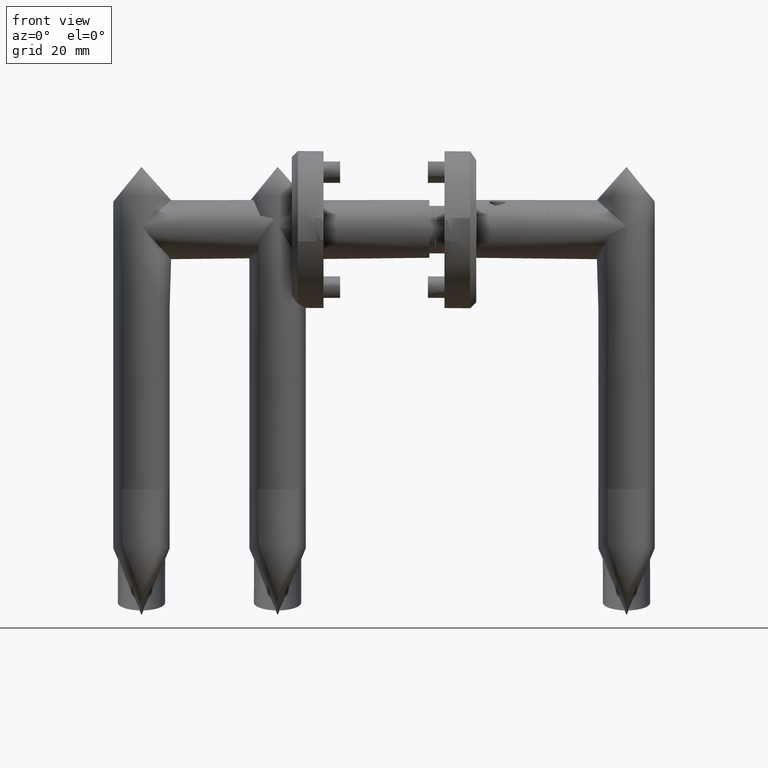
[diagram: clean part render]
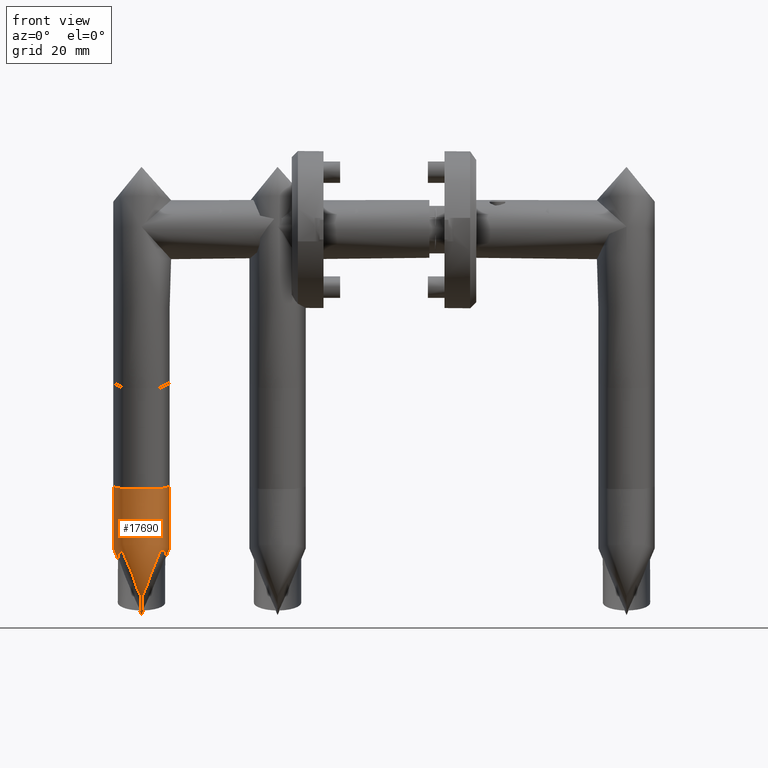
[diagram: same view with one face highlighted and labeled with its STEP entity id]
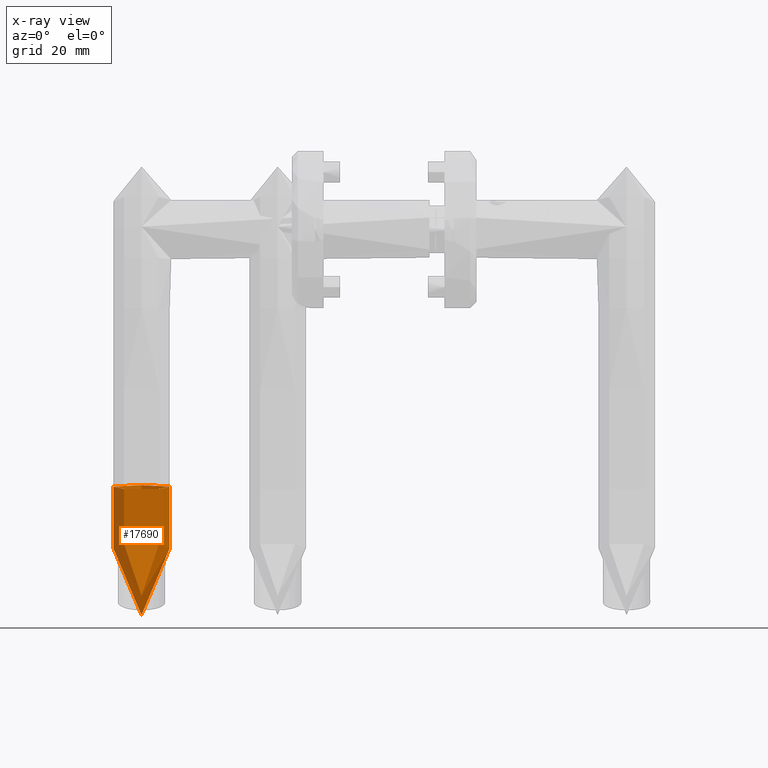
[diagram: x-ray of the same camera — body ghosted, the highlighted face saturated]
A machine part, front view. The second image highlights one B-rep face of the part: STEP entity #17690.
The next image is the same camera in x-ray: the body ghosted, the highlighted face saturated — about 0% of this face is hidden behind the body in this view.
In plain terms, the highlighted toroidal blend (fillet) surface has major radius 100 mm and minor (blend) radius 9.8 mm.
Its self-contained STEP definition (entity closure, byte-faithful):
#49 = CARTESIAN_POINT ( 'NONE',  ( -94.30587042315966100, 15.09717805399581200, 50.20000000000003800 ) ) ;
#73 = CARTESIAN_POINT ( 'NONE',  ( -137.2505436632808700, 9.521688678409246300, 51.48706898686970800 ) ) ;
#154 = DIRECTION ( 'NONE',  ( 1.972152263052526900E-031, 3.889170968374258800E-034, 1.000000000000000000 ) ) ;
#216 = CARTESIAN_POINT ( 'NONE',  ( -136.4760305675287400, 7.293589751568066300, 56.68208467119812600 ) ) ;
#579 = VERTEX_POINT ( 'NONE', #49 ) ;
#930 = CARTESIAN_POINT ( 'NONE',  ( -133.2216185328167300, -2.071634367237822300, 59.67150684859506500 ) ) ;
#1067 = CARTESIAN_POINT ( 'NONE',  ( -133.6314865475514500, -0.8918551739545908000, 59.93598185547986600 ) ) ;
#1210 = CARTESIAN_POINT ( 'NONE',  ( -135.3806859842590300, 4.142081212017075100, 41.26635353884891100 ) ) ;
#1492 = CARTESIAN_POINT ( 'NONE',  ( -136.9855081724475700, 8.759267931215221700, 46.14909681967486000 ) ) ;
#2336 = AXIS2_PLACEMENT_3D ( 'NONE', #16069, #19711, #6951 ) ;
#2344 = AXIS2_PLACEMENT_3D ( 'NONE', #26284, #154, #16360 ) ;
#2496 = FACE_OUTER_BOUND ( 'NONE', #25106, .T. ) ;
#3200 = CARTESIAN_POINT ( 'NONE',  ( -136.7861674528744500, 8.185811057130569800, 55.38497639291452400 ) ) ;
#3340 = CARTESIAN_POINT ( 'NONE',  ( -133.0191027104699800, -2.654593366463261700, 40.91573145400595700 ) ) ;
#3472 = CARTESIAN_POINT ( 'NONE',  ( -133.8412008356639300, -0.2882450497194664100, 59.99983444358028400 ) ) ;
#4188 = CARTESIAN_POINT ( 'NONE',  ( -134.7824555502190300, 2.420630773650543200, 59.75080105497685400 ) ) ;
#4329 = CARTESIAN_POINT ( 'NONE',  ( -137.0299040370925400, 8.886983007033906600, 53.96543911801062900 ) ) ;
#4858 = EDGE_LOOP ( 'NONE', ( #23673 ) ) ;
#4915 = CARTESIAN_POINT ( 'NONE',  ( -136.7860899921550700, 8.185588201121046100, 45.01485869326855700 ) ) ;
#5924 = EDGE_CURVE ( 'NONE', #28705, #28705, #26653, .T. ) ;
#6448 = CARTESIAN_POINT ( 'NONE',  ( -130.9417777463193600, -8.635766100734068500, 52.74827549419139000 ) ) ;
#6583 = CARTESIAN_POINT ( 'NONE',  ( -131.0032562662959200, -8.458712065413957100, 53.36278957010308900 ) ) ;
#6951 = DIRECTION ( 'NONE',  ( 0.07082954865716628600, 0.9974884335354581300, 0.0000000000000000000 ) ) ;
#7307 = CARTESIAN_POINT ( 'NONE',  ( -131.4983316940442300, -7.033029923588770800, 56.18285820964212700 ) ) ;
#7444 = CARTESIAN_POINT ( 'NONE',  ( -131.1649470607422400, -7.993069608801747000, 45.84904688958492600 ) ) ;
#7581 = CARTESIAN_POINT ( 'NONE',  ( -130.9465071588801100, -8.622146003430163600, 47.65979484122671300 ) ) ;
#9554 = CARTESIAN_POINT ( 'NONE',  ( -131.5019567994518800, -7.022594235418352100, 44.22864478948980600 ) ) ;
#9702 = CARTESIAN_POINT ( 'NONE',  ( -133.0199159554198000, -2.652252313485353100, 59.48513295218805300 ) ) ;
#9838 = CARTESIAN_POINT ( 'NONE',  ( -134.8844443954501700, 2.714122961431375100, 59.67333815134161100 ) ) ;
#10537 = CARTESIAN_POINT ( 'NONE',  ( -131.9297535314316600, -5.790781539996562100, 42.81466505464563000 ) ) ;
#10681 = CARTESIAN_POINT ( 'NONE',  ( -135.1870953438657400, 3.585028940994867700, 59.37761911730361700 ) ) ;
#10820 = CARTESIAN_POINT ( 'NONE',  ( -136.0149819239575200, 5.967135855057123600, 42.40479340325518400 ) ) ;
#10961 = CARTESIAN_POINT ( 'NONE',  ( -136.9398229469338700, 8.627843704895989100, 45.85543902642024200 ) ) ;
#11250 = CARTESIAN_POINT ( 'NONE',  ( -134.8882096061357700, 2.724965919176059800, 40.71356107942354900 ) ) ;
#11390 = CARTESIAN_POINT ( 'NONE',  ( -135.6634196130113400, 4.955608736246371200, 41.70836834967475700 ) ) ;
#11722 = CARTESIAN_POINT ( 'NONE',  ( -137.2713942788150500, 9.581667550076804900, 50.84723566667401700 ) ) ;
#12225 = EDGE_CURVE ( 'NONE', #579, #579, #13749, .T. ) ;
#12761 = CARTESIAN_POINT ( 'NONE',  ( -131.6364587602083400, -6.635293846399601800, 43.72960601155012500 ) ) ;
#12907 = CARTESIAN_POINT ( 'NONE',  ( -136.9401360096909200, 8.628744303472771500, 54.54255943944645000 ) ) ;
#13038 = CARTESIAN_POINT ( 'NONE',  ( -134.2653210898901100, 0.9324078507737929600, 60.00016491543603100 ) ) ;
#13749 = CIRCLE ( 'NONE', #2336, 9.800000000000006000 ) ;
#13756 = CARTESIAN_POINT ( 'NONE',  ( -132.4465924532386800, -4.302739830939275500, 41.70588969626112400 ) ) ;
#13894 = CARTESIAN_POINT ( 'NONE',  ( -131.1682889898215200, -7.983446958773057200, 54.53599037197601300 ) ) ;
#14036 = CARTESIAN_POINT ( 'NONE',  ( -137.1067527543847300, 9.108053626402103500, 47.03947301256440000 ) ) ;
#15985 = ORIENTED_EDGE ( 'NONE', *, *, #5924, .T. ) ;
#15987 = CARTESIAN_POINT ( 'NONE',  ( -132.4425550903277400, -4.314356701547044500, 58.70503834560678800 ) ) ;
#16069 = CARTESIAN_POINT ( 'NONE',  ( -94.99999999999988600, 5.321791405348316900, 50.20000000000003800 ) ) ;
#16132 = CARTESIAN_POINT ( 'NONE',  ( -132.0916399017695300, -5.324669796115940400, 42.40934675098853300 ) ) ;
#16270 = CARTESIAN_POINT ( 'NONE',  ( -133.3234007152127300, -1.778654288655589800, 59.74909754602772000 ) ) ;
#16360 = DIRECTION ( 'NONE',  ( 1.000000000000000000, -7.670037326677482100E-065, -1.972152263052526700E-031 ) ) ;
#16990 = CARTESIAN_POINT ( 'NONE',  ( -133.2203663737681200, -2.075238755135472500, 40.72953833911649500 ) ) ;
#17126 = CARTESIAN_POINT ( 'NONE',  ( -135.6637145493262200, 4.956462278983772200, 58.70917250445815900 ) ) ;
#17689 = CARTESIAN_POINT ( 'NONE',  ( -137.2500920840657600, 9.520389651944851700, 48.90508894726351500 ) ) ;
#17690 = ADVANCED_FACE ( 'NONE', ( #2496, #25595 ), #40102, .T. ) ;
#17826 = CARTESIAN_POINT ( 'NONE',  ( -135.0886688341376800, 3.301809027693098000, 40.89851876511694000 ) ) ;
#19214 = CARTESIAN_POINT ( 'NONE',  ( -136.8408554178653800, 8.343137139713922700, 55.10740291444172800 ) ) ;
#19354 = CARTESIAN_POINT ( 'NONE',  ( -132.8217753795686600, -3.222633932605510700, 41.13106377182577200 ) ) ;
#19490 = CARTESIAN_POINT ( 'NONE',  ( -130.9209986572090500, -8.695608978654840700, 47.97016899187877900 ) ) ;
#19711 = DIRECTION ( 'NONE',  ( 0.9974884335354582400, -0.07082954865716700700, 1.848892746611746900E-031 ) ) ;
#20191 = CARTESIAN_POINT ( 'NONE',  ( -133.6347832177671400, -0.8823661205560643400, 40.46226500349676100 ) ) ;
#20326 = CARTESIAN_POINT ( 'NONE',  ( -130.8382691152118300, -8.933867784720362700, 50.83977717308285800 ) ) ;
#20606 = CARTESIAN_POINT ( 'NONE',  ( -136.6112789533505300, 7.682685676180278200, 44.21928112376629400 ) ) ;
#21024 = CARTESIAN_POINT ( 'NONE',  ( -137.1676536069239500, 9.283244061047900800, 47.65011497134393900 ) ) ;
#22429 = CARTESIAN_POINT ( 'NONE',  ( -131.0078186050759800, -8.445574890725437100, 47.04439093759056300 ) ) ;
#22552 = CARTESIAN_POINT ( 'NONE',  ( -132.0934562589776000, -5.319440292532017400, 57.99452834347136600 ) ) ;
#22690 = CARTESIAN_POINT ( 'NONE',  ( -136.1754825068586000, 6.428907837619732400, 57.57444401245621200 ) ) ;
#23413 = CARTESIAN_POINT ( 'NONE',  ( -131.3223608477666700, -7.539761990205667200, 55.38085868616949600 ) ) ;
#23561 = CARTESIAN_POINT ( 'NONE',  ( -137.1883152580383000, 9.342680137011974800, 52.43583001759196800 ) ) ;
#23673 = ORIENTED_EDGE ( 'NONE', *, *, #12225, .F. ) ;
#23697 = CARTESIAN_POINT ( 'NONE',  ( -136.4778495551284200, 7.298822988238149500, 43.72345113579677200 ) ) ;
#23839 = CARTESIAN_POINT ( 'NONE',  ( -135.7535421779313400, 5.214916258106145900, 41.87298791730117400 ) ) ;
#25106 = EDGE_LOOP ( 'NONE', ( #15985 ) ) ;
#25595 = FACE_OUTER_BOUND ( 'NONE', #4858, .T. ) ;
#25636 = CARTESIAN_POINT ( 'NONE',  ( -135.0867769801566600, 3.296358606018746900, 59.48685882853204300 ) ) ;
#25768 = CARTESIAN_POINT ( 'NONE',  ( -136.2534587370211600, 6.653249415385199800, 57.35922320689593300 ) ) ;
#25917 = CARTESIAN_POINT ( 'NONE',  ( -136.0117395213048900, 5.957801691618325200, 57.98329180600230600 ) ) ;
#26284 = CARTESIAN_POINT ( 'NONE',  ( -102.0829548657166700, -94.42705194819750100, 50.19999999999999600 ) ) ;
#26623 = CARTESIAN_POINT ( 'NONE',  ( -132.6271956339884100, -3.782789253097105200, 59.00622119506697100 ) ) ;
#26653 = B_SPLINE_CURVE_WITH_KNOTS ( 'NONE', 3,
 ( #31603, #11722, #73, #23561, #29841, #32214, #4329, #12907, #19214, #3200, #31956, #216, #25768, #22690, #25917, #36287, #17126, #28873, #10681, #25636, #9838, #4188, #35445, #13038, #3472, #1067, #16270, #930, #9702, #38636, #26623, #15987, #22552, #29008, #33061, #7307, #23413, #38375, #13894, #41611, #6583, #6448, #39484, #20326, #26772, #32086, #19490, #7581, #22429, #29706, #7444, #32924, #35301, #9554, #12761, #35161, #10537, #16132, #38507, #13756, #36141, #19354, #3340, #16990, #39346, #20191, #30266, #33194, #33624, #39618, #29989, #11250, #17826, #1210, #30410, #11390, #23839, #10820, #36857, #23697, #20606, #4915, #36435, #10961, #1492, #14036, #21024, #17689, #40062, #27336 ),
 .UNSPECIFIED., .T., .F.,
 ( 4, 2, 2, 1, 2, 2, 2, 2, 2, 2, 2, 2, 2, 2, 2, 2, 2, 2, 2, 2, 2, 2, 2, 2, 2, 2, 2, 2, 2, 2, 2, 1, 2, 2, 2, 2, 2, 2, 2, 2, 2, 2, 2, 2, 2, 4 ),
 ( 0.0000000000000000000, 0.001928646792966233500, 0.002892970189449352800, 0.003857293585932472200, 0.004821616982415590600, 0.005785940378898710900, 0.007714587171864981600, 0.008678910568348107900, 0.009643233964831235100, 0.01157188075779749300, 0.01253620415428063000, 0.01350052755076376600, 0.01542917434373003800, 0.01735782113669630900, 0.01832214453317945700, 0.01928646792966260200, 0.02121511472262889800, 0.02314376151559518700, 0.02507240830856147900, 0.02603673170504462700, 0.02700105510152776800, 0.02892970189449406400, 0.03085834868746035700, 0.03278699548042664900, 0.03375131887690979000, 0.03471564227339292400, 0.03664428906635917900, 0.03760861246284229900, 0.03857293585932541200, 0.04050158265229167300, 0.04146590604877480700, 0.04243022944525794800, 0.04339455284174108300, 0.04435887623822421700, 0.04628752303119045700, 0.04725184642767356300, 0.04821616982415667000, 0.05014481661712285500, 0.05110914001360594000, 0.05207346341008901900, 0.05400211020305517600, 0.05593075699602134000, 0.05689508039250443200, 0.05785940378898751800, 0.05978805058195370300, 0.06171669737491988100 ),
 .UNSPECIFIED. ) ;
#26772 = CARTESIAN_POINT ( 'NONE',  ( -130.8385886507168400, -8.932947522813664800, 49.54547159850696400 ) ) ;
#27336 = CARTESIAN_POINT ( 'NONE',  ( -137.2713942788150800, 9.581667550076808500, 50.20000000000002400 ) ) ;
#28705 = VERTEX_POINT ( 'NONE', #35420 ) ;
#28873 = CARTESIAN_POINT ( 'NONE',  ( -135.4789319493337700, 4.424781471889913200, 59.00965203948810300 ) ) ;
#29008 = CARTESIAN_POINT ( 'NONE',  ( -131.9279714820250100, -5.795912573221516900, 57.58060962158165800 ) ) ;
#29706 = CARTESIAN_POINT ( 'NONE',  ( -131.0437892131588700, -8.341983923573129900, 46.73857495003004200 ) ) ;
#29841 = CARTESIAN_POINT ( 'NONE',  ( -137.1622993623541900, 9.267841594829999300, 52.75036262866006400 ) ) ;
#29989 = CARTESIAN_POINT ( 'NONE',  ( -134.5789010367843700, 1.834848714268657400, 40.52601281831078900 ) ) ;
#30266 = CARTESIAN_POINT ( 'NONE',  ( -133.8434011630975800, -0.2819123442237202500, 40.40019572331691900 ) ) ;
#30410 = CARTESIAN_POINT ( 'NONE',  ( -135.4770769940000200, 4.419437215181764200, 41.40504850807846500 ) ) ;
#31603 = CARTESIAN_POINT ( 'NONE',  ( -137.2713942788150800, 9.581667550076808500, 50.20000000000002400 ) ) ;
#31956 = CARTESIAN_POINT ( 'NONE',  ( -136.6093780221848400, 7.677216981954958700, 56.18899212543302500 ) ) ;
#32086 = CARTESIAN_POINT ( 'NONE',  ( -130.8595667825448700, -8.872530107298068500, 48.90912772656319900 ) ) ;
#32214 = CARTESIAN_POINT ( 'NONE',  ( -137.1008781753723700, 9.091153203175180100, 53.36406478730434300 ) ) ;
#32924 = CARTESIAN_POINT ( 'NONE',  ( -131.2637690617187900, -7.708485074500179800, 45.28651927299496500 ) ) ;
#33061 = CARTESIAN_POINT ( 'NONE',  ( -131.6312908856973000, -6.650169097424909900, 56.67599071778106200 ) ) ;
#33194 = CARTESIAN_POINT ( 'NONE',  ( -134.1579501930943900, 0.6233856062550419100, 40.39990282489543500 ) ) ;
#33624 = CARTESIAN_POINT ( 'NONE',  ( -134.2630721465756400, 0.9259266780645059000, 40.41538493216091200 ) ) ;
#35161 = CARTESIAN_POINT ( 'NONE',  ( -131.7072264951449900, -6.431521451365917100, 43.49212354633694800 ) ) ;
#35301 = CARTESIAN_POINT ( 'NONE',  ( -131.4388486446661700, -7.204319461896757200, 44.48807025130555800 ) ) ;
#35420 = CARTESIAN_POINT ( 'NONE',  ( -137.2713942788150800, 9.581667550076810300, 50.20000000000003800 ) ) ;
#35445 = CARTESIAN_POINT ( 'NONE',  ( -134.4740844808396800, 1.533211117743774400, 59.93705712894377800 ) ) ;
#36141 = CARTESIAN_POINT ( 'NONE',  ( -132.6322133315626400, -3.768352419988772400, 41.40388563495654500 ) ) ;
#36287 = CARTESIAN_POINT ( 'NONE',  ( -135.9262651324141600, 5.711878226923653700, 58.17594532603669000 ) ) ;
#36435 = CARTESIAN_POINT ( 'NONE',  ( -136.8401799616571600, 8.341193999118294400, 45.28897677311199000 ) ) ;
#36857 = CARTESIAN_POINT ( 'NONE',  ( -136.1774582750523500, 6.434595683732688100, 42.80955593511576000 ) ) ;
#38375 = CARTESIAN_POINT ( 'NONE',  ( -131.2675629244834300, -7.697563484546493300, 55.10223488352608700 ) ) ;
#38507 = CARTESIAN_POINT ( 'NONE',  ( -132.3552670866251900, -4.565665846723279100, 41.87252752266333300 ) ) ;
#38636 = CARTESIAN_POINT ( 'NONE',  ( -132.9195289871491900, -2.941233390931101700, 59.37564371116670300 ) ) ;
#39346 = CARTESIAN_POINT ( 'NONE',  ( -133.3235224645829600, -1.778303776870493200, 40.65070634332727200 ) ) ;
#39484 = CARTESIAN_POINT ( 'NONE',  ( -130.8589428444719300, -8.874327026375604900, 51.48048696649981100 ) ) ;
#39618 = CARTESIAN_POINT ( 'NONE',  ( -134.4738769912305800, 1.532606323808012100, 40.47845839964754300 ) ) ;
#40062 = CARTESIAN_POINT ( 'NONE',  ( -137.2713942788150800, 9.581667550076812000, 49.55276433332605300 ) ) ;
#40102 = TOROIDAL_SURFACE ( 'NONE', #2344, 99.99999999999997200, 9.800000000000006000 ) ;
#41611 = CARTESIAN_POINT ( 'NONE',  ( -131.1234778209530700, -8.112494055432323500, 54.24700628174746000 ) ) ;